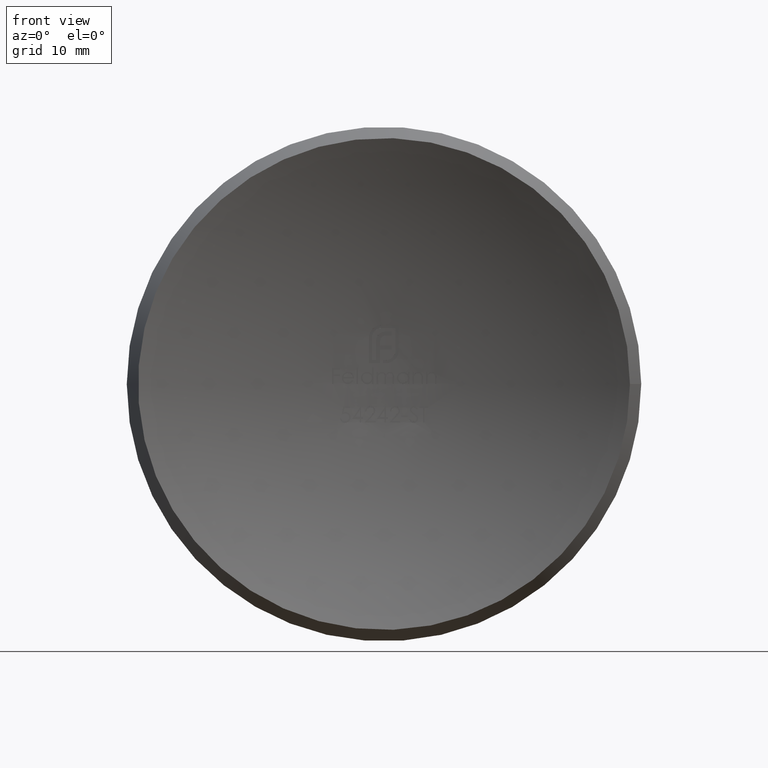
[diagram: clean part render]
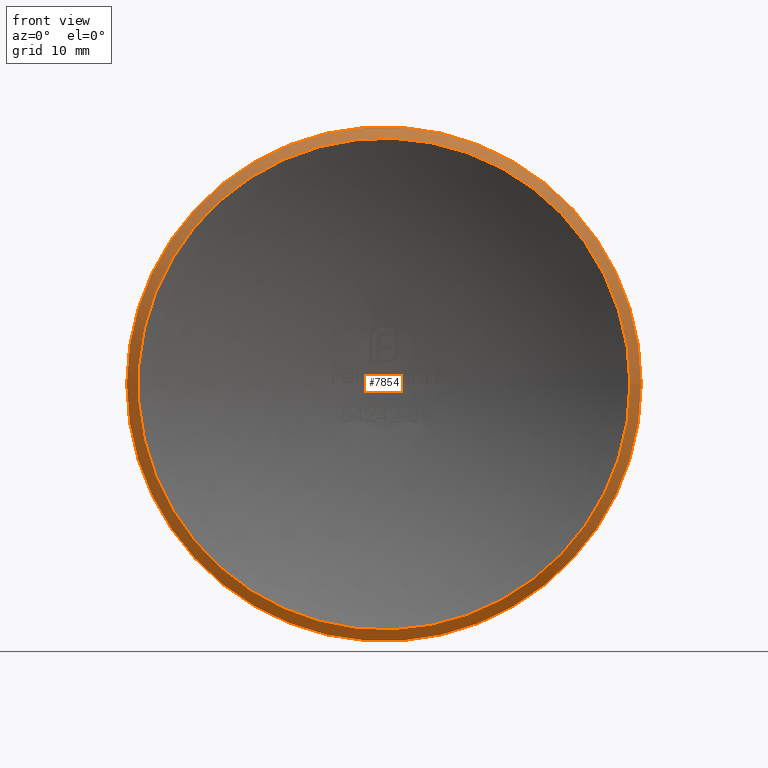
[diagram: same view with one face highlighted and labeled with its STEP entity id]
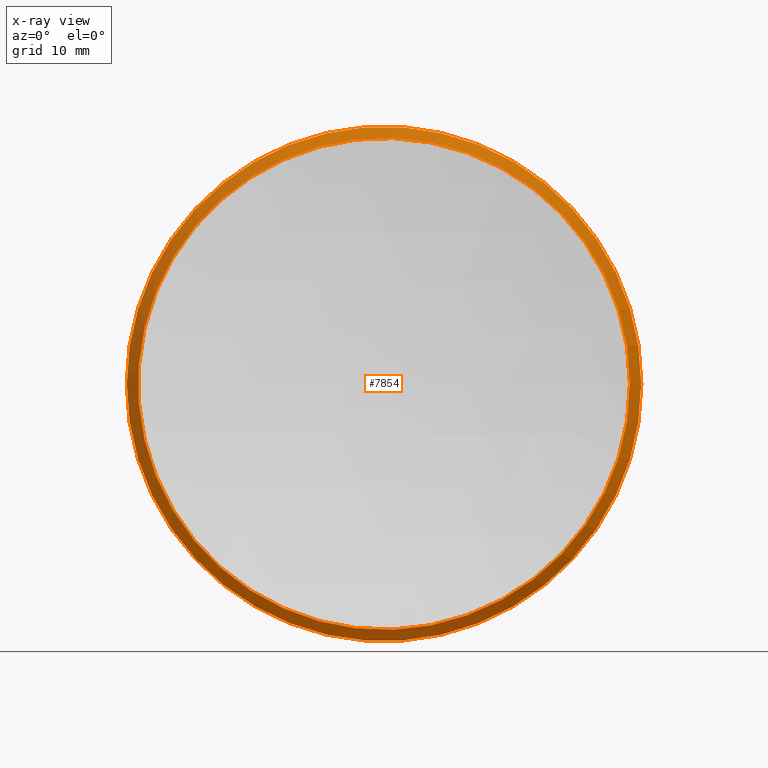
[diagram: x-ray of the same camera — body ghosted, the highlighted face saturated]
A machine part, front view. The second image highlights one B-rep face of the part: STEP entity #7854.
The next image is the same camera in x-ray: the body ghosted, the highlighted face saturated — about 0% of this face is hidden behind the body in this view.
In plain terms, the highlighted conical surface has half-angle 27.713 deg.
Its self-contained STEP definition (entity closure, byte-faithful):
#87 = AXIS2_PLACEMENT_3D ( 'NONE', #207, #5812, #7619 ) ;
#207 = CARTESIAN_POINT ( 'NONE',  ( 6.978484678373912826E-15, 1.770573371923706452, 0.000000000000000000 ) ) ;
#568 = VERTEX_POINT ( 'NONE', #6673 ) ;
#963 = CARTESIAN_POINT ( 'NONE',  ( 21.19999999999999929, 1.770573371923734651, 0.000000000000000000 ) ) ;
#1063 = FACE_BOUND ( 'NONE', #6056, .T. ) ;
#1335 = ORIENTED_EDGE ( 'NONE', *, *, #8840, .T. ) ;
#2862 = ORIENTED_EDGE ( 'NONE', *, *, #8376, .F. ) ;
#3243 = CONICAL_SURFACE ( 'NONE', #8897, 20.26990864178046436, 0.4836862086175944264 ) ;
#3803 = FACE_OUTER_BOUND ( 'NONE', #9377, .T. ) ;
#5444 = DIRECTION ( 'NONE',  ( -1.334464540380600701E-15, 1.000000000000000000, 0.000000000000000000 ) ) ;
#5812 = DIRECTION ( 'NONE',  ( 1.334464540380600701E-15, -1.000000000000000000, -0.000000000000000000 ) ) ;
#6040 = CARTESIAN_POINT ( 'NONE',  ( 9.341252059348238098E-15, -1.994931997373328159E-14, 0.000000000000000000 ) ) ;
#6056 = EDGE_LOOP ( 'NONE', ( #2862 ) ) ;
#6673 = CARTESIAN_POINT ( 'NONE',  ( 20.26990864178047502, 7.100154345477054184E-15, 0.000000000000000000 ) ) ;
#6894 = DIRECTION ( 'NONE',  ( 1.000000000000000000, 1.334464540380600898E-15, 0.000000000000000000 ) ) ;
#7413 = AXIS2_PLACEMENT_3D ( 'NONE', #6040, #7796, #6894 ) ;
#7619 = DIRECTION ( 'NONE',  ( 1.000000000000000000, 1.329681909652034238E-15, 0.000000000000000000 ) ) ;
#7796 = DIRECTION ( 'NONE',  ( 1.334464540380600701E-15, -1.000000000000000000, -0.000000000000000000 ) ) ;
#7854 = ADVANCED_FACE ( 'NONE', ( #3803, #1063 ), #3243, .T. ) ;
#8376 = EDGE_CURVE ( 'NONE', #568, #568, #8605, .T. ) ;
#8605 = CIRCLE ( 'NONE', #7413, 20.26990864178046436 ) ;
#8840 = EDGE_CURVE ( 'NONE', #8996, #8996, #11098, .T. ) ;
#8897 = AXIS2_PLACEMENT_3D ( 'NONE', #10061, #5444, #11969 ) ;
#8996 = VERTEX_POINT ( 'NONE', #963 ) ;
#9377 = EDGE_LOOP ( 'NONE', ( #1335 ) ) ;
#10061 = CARTESIAN_POINT ( 'NONE',  ( 9.341252059348238098E-15, -1.994931997373328159E-14, 0.000000000000000000 ) ) ;
#11098 = CIRCLE ( 'NONE', #87, 21.19999999999999218 ) ;
#11969 = DIRECTION ( 'NONE',  ( -1.000000000000000000, -1.334464540380601095E-15, 0.000000000000000000 ) ) ;